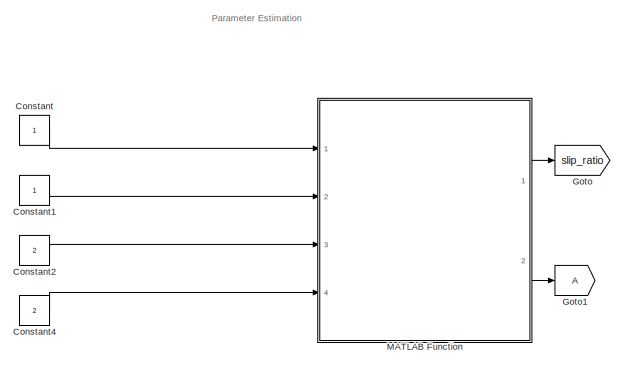
[diagram: root canvas - part 1/2, middle left region]
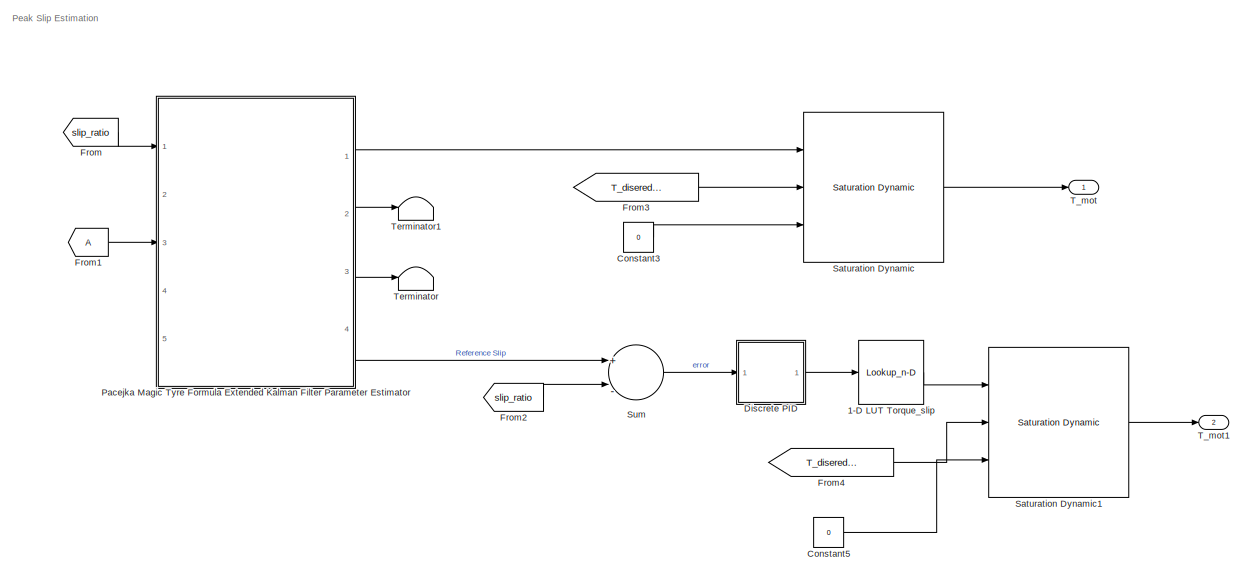
[diagram: root canvas - part 2/2, center side, full height]
MODEL slx_b171f29d78f6
KIND model
CONFIG AbsTol = auto
CONFIG FixedStep = 0.001
CONFIG MaxStep = auto
CONFIG MinStep = auto
CONFIG RelTol = 1e-3
CONFIG SampleTimeConstraint = Unconstrained
CONFIG Solver = ode3
CONFIG SolverMode = Auto
CONFIG SolverName = ode3
CONFIG StartTime = 0.0
CONFIG StopTime = inf
BLOCK [Lookup_n-D] 1-D LUT Torque_slip
  BreakpointsForDimension1 = [-5:5]
  InternalRulePriority = Speed
  NumberOfTableDimensions = 1
  Ports = [1, 1]
  RndMeth = Simplest
  Table = tanh([-5:5])
BLOCK [Constant] Constant
BLOCK [Constant] Constant1
BLOCK [Constant] Constant2
  Value = 2
BLOCK [Constant] Constant3
  Value = 0
BLOCK [Constant] Constant4
  Value = 2
BLOCK [Constant] Constant5
  Value = 0
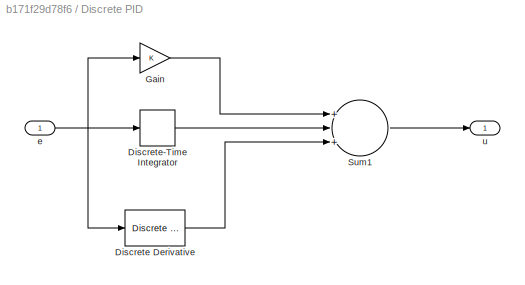
BLOCK [SubSystem] Discrete PID
  Ports = [1, 1]
  RequestExecContextInheritance = off
  Variant = off
BLOCK [Reference] Discrete PID/Discrete Derivative  REF=simulink/Discrete/Discrete Derivative
  DoSatur = off
  ICPrevScaledInput = 0.0
  InputProcessing = Inherited
  LockScale = off
  OutDataType = fixdt(1, 16)
  OutDataTypeStr = Inherit: Inherit via internal rule
  OutMax = []
  OutMin = []
  OutScaling = 2^-10
  OutputDataTypeScalingMode = Inherit via internal rule
  Ports = [1, 1]
  RndMeth = Floor
  SourceBlock = simulink/Discrete/Discrete Derivative
  SourceType = Discrete Derivative
  gainval = 1.0
BLOCK [DiscreteIntegrator] Discrete PID/Discrete-Time Integrator
  ICPrevOutput = DiscIntNeverNeededParam
  ICPrevScaledInput = DiscIntNeverNeededParam
  InitialConditionSetting = State (most efficient)
  Ports = [1, 1]
BLOCK [Gain] Discrete PID/Gain
  OutDataTypeStr = Inherit: Inherit via internal rule
  ParamDataTypeStr = Inherit: Inherit via internal rule
  SaturateOnIntegerOverflow = off
BLOCK [Sum] Discrete PID/Sum1
  InputSameDT = off
  Inputs = +|+|+
  OutDataTypeStr = Inherit: Inherit via internal rule
  Ports = [3, 1]
  SaturateOnIntegerOverflow = off
BLOCK [Inport] Discrete PID/e 
  IconDisplay = Port number
BLOCK [Outport] Discrete PID/u
  IconDisplay = Port number
BLOCK [From] From
  GotoTag = slip_ratio
BLOCK [From] From1
BLOCK [From] From2
  GotoTag = slip_ratio
BLOCK [From] From3
  GotoTag = T_disered_pedal_Nm
BLOCK [From] From4
  GotoTag = T_disered_pedal_Nm
BLOCK [Goto] Goto
  GotoTag = slip_ratio
BLOCK [Goto] Goto1
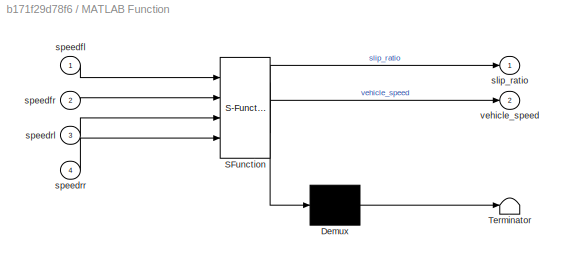
BLOCK [SubSystem] MATLAB Function
  ErrorFcn = Stateflow.Translate.translate
  PermitHierarchicalResolution = ParametersOnly
  Ports = [4, 2]
  RequestExecContextInheritance = off
  SFBlockType = MATLAB Function
  TreatAsAtomicUnit = on
  Variant = off
BLOCK [Demux] MATLAB Function/ Demux 
  Outputs = 1
  Ports = [1, 1]
BLOCK [S-Function] MATLAB Function/ SFunction 
  EnableBusSupport = on
  FunctionName = sf_sfun
  PortCounts = [4 3]
  Ports = [4, 3]
  SFunctionDeploymentMode = off
  Tag = Stateflow S-Function Launch_controlV1_a 2
BLOCK [Terminator] MATLAB Function/ Terminator 
BLOCK [Outport] MATLAB Function/slip_ratio
  IconDisplay = Port number
BLOCK [Inport] MATLAB Function/speedfl
  IconDisplay = Port number
BLOCK [Inport] MATLAB Function/speedfr
  IconDisplay = Port number
  Port = 2
BLOCK [Inport] MATLAB Function/speedrl
  IconDisplay = Port number
  Port = 3
BLOCK [Inport] MATLAB Function/speedrr
  IconDisplay = Port number
  Port = 4
BLOCK [Outport] MATLAB Function/vehicle_speed
  IconDisplay = Port number
  Port = 2
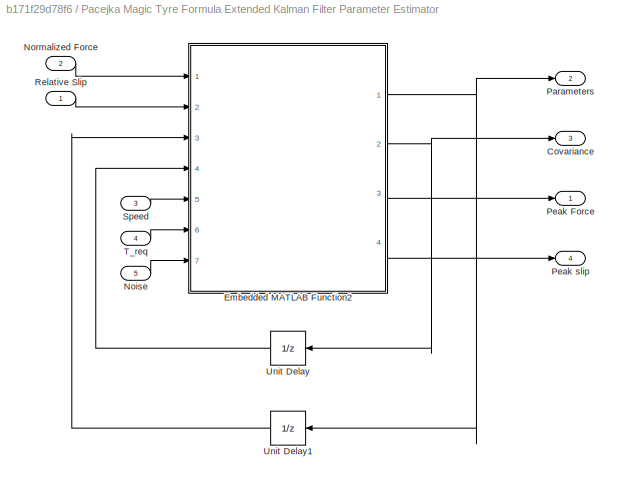
BLOCK [SubSystem] Pacejka Magic Tyre Formula Extended Kalman Filter Parameter Estimator
  Ports = [5, 4]
  RequestExecContextInheritance = off
  Variant = off
BLOCK [Outport] Pacejka Magic Tyre Formula Extended Kalman Filter Parameter Estimator/Covariance
  IconDisplay = Port number
  Port = 3
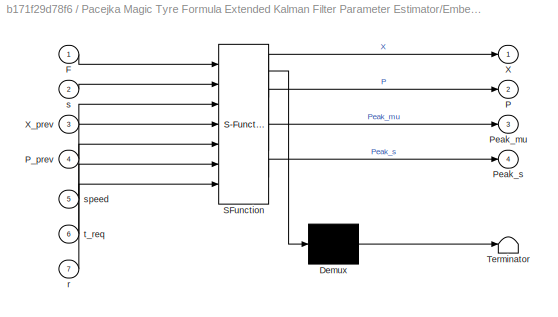
BLOCK [SubSystem] Pacejka Magic Tyre Formula Extended Kalman Filter Parameter Estimator/Embedded MATLAB Function2
  ErrorFcn = Stateflow.Translate.translate
  PermitHierarchicalResolution = ParametersOnly
  Ports = [7, 4]
  RequestExecContextInheritance = off
  SFBlockType = MATLAB Function
  TreatAsAtomicUnit = on
  Variant = off
BLOCK [Demux] Pacejka Magic Tyre Formula Extended Kalman Filter Parameter Estimator/Embedded MATLAB Function2/ Demux 
  Outputs = 1
  Ports = [1, 1]
BLOCK [S-Function] Pacejka Magic Tyre Formula Extended Kalman Filter Parameter Estimator/Embedded MATLAB Function2/ SFunction 
  EnableBusSupport = off
  FunctionName = sf_sfun
  PortCounts = [7 5]
  Ports = [7, 5]
  SFunctionDeploymentMode = off
  Tag = Stateflow S-Function Launch_controlV1_a 11
BLOCK [Terminator] Pacejka Magic Tyre Formula Extended Kalman Filter Parameter Estimator/Embedded MATLAB Function2/ Terminator 
BLOCK [Inport] Pacejka Magic Tyre Formula Extended Kalman Filter Parameter Estimator/Embedded MATLAB Function2/F
  IconDisplay = Port number
BLOCK [Outport] Pacejka Magic Tyre Formula Extended Kalman Filter Parameter Estimator/Embedded MATLAB Function2/P
  IconDisplay = Port number
  Port = 2
BLOCK [Inport] Pacejka Magic Tyre Formula Extended Kalman Filter Parameter Estimator/Embedded MATLAB Function2/P_prev
  IconDisplay = Port number
  Port = 4
BLOCK [Outport] Pacejka Magic Tyre Formula Extended Kalman Filter Parameter Estimator/Embedded MATLAB Function2/Peak_mu
  IconDisplay = Port number
  Port = 3
BLOCK [Outport] Pacejka Magic Tyre Formula Extended Kalman Filter Parameter Estimator/Embedded MATLAB Function2/Peak_s
  IconDisplay = Port number
  Port = 4
BLOCK [Outport] Pacejka Magic Tyre Formula Extended Kalman Filter Parameter Estimator/Embedded MATLAB Function2/X
  IconDisplay = Port number
BLOCK [Inport] Pacejka Magic Tyre Formula Extended Kalman Filter Parameter Estimator/Embedded MATLAB Function2/X_prev
  IconDisplay = Port number
  Port = 3
BLOCK [Inport] Pacejka Magic Tyre Formula Extended Kalman Filter Parameter Estimator/Embedded MATLAB Function2/r
  IconDisplay = Port number
  Port = 7
BLOCK [Inport] Pacejka Magic Tyre Formula Extended Kalman Filter Parameter Estimator/Embedded MATLAB Function2/s
  IconDisplay = Port number
  Port = 2
BLOCK [Inport] Pacejka Magic Tyre Formula Extended Kalman Filter Parameter Estimator/Embedded MATLAB Function2/speed
  IconDisplay = Port number
  Port = 5
BLOCK [Inport] Pacejka Magic Tyre Formula Extended Kalman Filter Parameter Estimator/Embedded MATLAB Function2/t_req
  IconDisplay = Port number
  Port = 6
BLOCK [Inport] Pacejka Magic Tyre Formula Extended Kalman Filter Parameter Estimator/Noise
  IconDisplay = Port number
  Port = 5
BLOCK [Inport] Pacejka Magic Tyre Formula Extended Kalman Filter Parameter Estimator/Normalized Force
  IconDisplay = Port number
  Port = 2
BLOCK [Outport] Pacejka Magic Tyre Formula Extended Kalman Filter Parameter Estimator/Parameters
  IconDisplay = Port number
  Port = 2
BLOCK [Outport] Pacejka Magic Tyre Formula Extended Kalman Filter Parameter Estimator/Peak Force
  IconDisplay = Port number
BLOCK [Outport] Pacejka Magic Tyre Formula Extended Kalman Filter Parameter Estimator/Peak slip
  IconDisplay = Port number
  Port = 4
BLOCK [Inport] Pacejka Magic Tyre Formula Extended Kalman Filter Parameter Estimator/Relative Slip
  IconDisplay = Port number
BLOCK [Inport] Pacejka Magic Tyre Formula Extended Kalman Filter Parameter Estimator/Speed
  IconDisplay = Port number
  Port = 3
BLOCK [Inport] Pacejka Magic Tyre Formula Extended Kalman Filter Parameter Estimator/T_req
  IconDisplay = Port number
  Port = 4
BLOCK [UnitDelay] Pacejka Magic Tyre Formula Extended Kalman Filter Parameter Estimator/Unit Delay
  InitialCondition = [1 0 0 0 0; 0 3 0 0 0; 0 0 3 0 0; 0 0 0 0.5 0; 0 0 0 0 5]
  SampleTime = Ts
BLOCK [UnitDelay] Pacejka Magic Tyre Formula Extended Kalman Filter Parameter Estimator/Unit Delay1
  InitialCondition = [15;2;2;0.9;0]
  SampleTime = Ts
BLOCK [Reference] Saturation Dynamic  REF=simulink/Discontinuities/Saturation
Dynamic
  DoSatur = off
  LockScale = off
  OutDataType = fixdt(1, 16)
  OutDataTypeStr = Inherit: Same as second input
  OutMax = []
  OutMin = []
  OutScaling = 2^-10
  OutputDataTypeScalingMode = Same as second input
  Ports = [3, 1]
  RndMeth = Floor
  SourceBlock = simulink/Discontinuities/Saturation\nDynamic
  SourceType = Saturation Dynamic
BLOCK [Reference] Saturation Dynamic1  REF=simulink/Discontinuities/Saturation
Dynamic
  DoSatur = off
  LockScale = off
  OutDataType = fixdt(1, 16)
  OutDataTypeStr = Inherit: Same as second input
  OutMax = []
  OutMin = []
  OutScaling = 2^-10
  OutputDataTypeScalingMode = Same as second input
  Ports = [3, 1]
  RndMeth = Floor
  SourceBlock = simulink/Discontinuities/Saturation\nDynamic
  SourceType = Saturation Dynamic
BLOCK [Sum] Sum
  InputSameDT = off
  Inputs = +|-
  OutDataTypeStr = Inherit: Inherit via internal rule
  Ports = [2, 1]
  SaturateOnIntegerOverflow = off
BLOCK [Outport] T_mot
  IconDisplay = Port number
BLOCK [Outport] T_mot1
  IconDisplay = Port number
  Port = 2
BLOCK [Terminator] Terminator
BLOCK [Terminator] Terminator1
ANNOTATION (root): Parameter Estimation
ANNOTATION (root): Peak Slip Estimation
LINE 1-D LUT Torque_slip:1 -> Saturation Dynamic1:1
LINE Constant1:1 -> MATLAB Function:2
LINE Constant2:1 -> MATLAB Function:3
LINE Constant3:1 -> Saturation Dynamic:3
LINE Constant4:1 -> MATLAB Function:4
LINE Constant5:1 -> Saturation Dynamic1:3
LINE Constant:1 -> MATLAB Function:1
LINE Discrete PID/Discrete Derivative:1 -> Discrete PID/Sum1:3
LINE Discrete PID/Discrete-Time Integrator:1 -> Discrete PID/Sum1:2
LINE Discrete PID/Gain:1 -> Discrete PID/Sum1:1
LINE Discrete PID/Sum1:1 -> Discrete PID/u:1
NET Discrete PID/e :1 -> Discrete PID/Discrete Derivative:1, Discrete PID/Discrete-Time Integrator:1, Discrete PID/Gain:1
LINE Discrete PID:1 -> 1-D LUT Torque_slip:1
LINE From1:1 -> Pacejka Magic Tyre Formula Extended Kalman Filter Parameter Estimator:3
LINE From2:1 -> Sum:2
LINE From3:1 -> Saturation Dynamic:2
LINE From4:1 -> Saturation Dynamic1:2
LINE From:1 -> Pacejka Magic Tyre Formula Extended Kalman Filter Parameter Estimator:1
LINE MATLAB Function:1 -> Goto:1
LINE MATLAB Function:2 -> Goto1:1
NET Pacejka Magic Tyre Formula Extended Kalman Filter Parameter Estimator/Embedded MATLAB Function2:1 -> Pacejka Magic Tyre Formula Extended Kalman Filter Parameter Estimator/Parameters:1, Pacejka Magic Tyre Formula Extended Kalman Filter Parameter Estimator/Unit Delay1:1
NET Pacejka Magic Tyre Formula Extended Kalman Filter Parameter Estimator/Embedded MATLAB Function2:2 -> Pacejka Magic Tyre Formula Extended Kalman Filter Parameter Estimator/Covariance:1, Pacejka Magic Tyre Formula Extended Kalman Filter Parameter Estimator/Unit Delay:1
LINE Pacejka Magic Tyre Formula Extended Kalman Filter Parameter Estimator/Embedded MATLAB Function2:3 -> Pacejka Magic Tyre Formula Extended Kalman Filter Parameter Estimator/Peak Force:1
LINE Pacejka Magic Tyre Formula Extended Kalman Filter Parameter Estimator/Embedded MATLAB Function2:4 -> Pacejka Magic Tyre Formula Extended Kalman Filter Parameter Estimator/Peak slip:1
LINE Pacejka Magic Tyre Formula Extended Kalman Filter Parameter Estimator/Noise:1 -> Pacejka Magic Tyre Formula Extended Kalman Filter Parameter Estimator/Embedded MATLAB Function2:7
LINE Pacejka Magic Tyre Formula Extended Kalman Filter Parameter Estimator/Normalized Force:1 -> Pacejka Magic Tyre Formula Extended Kalman Filter Parameter Estimator/Embedded MATLAB Function2:1
LINE Pacejka Magic Tyre Formula Extended Kalman Filter Parameter Estimator/Relative Slip:1 -> Pacejka Magic Tyre Formula Extended Kalman Filter Parameter Estimator/Embedded MATLAB Function2:2
LINE Pacejka Magic Tyre Formula Extended Kalman Filter Parameter Estimator/Speed:1 -> Pacejka Magic Tyre Formula Extended Kalman Filter Parameter Estimator/Embedded MATLAB Function2:5
LINE Pacejka Magic Tyre Formula Extended Kalman Filter Parameter Estimator/T_req:1 -> Pacejka Magic Tyre Formula Extended Kalman Filter Parameter Estimator/Embedded MATLAB Function2:6
LINE Pacejka Magic Tyre Formula Extended Kalman Filter Parameter Estimator/Unit Delay1:1 -> Pacejka Magic Tyre Formula Extended Kalman Filter Parameter Estimator/Embedded MATLAB Function2:3
LINE Pacejka Magic Tyre Formula Extended Kalman Filter Parameter Estimator/Unit Delay:1 -> Pacejka Magic Tyre Formula Extended Kalman Filter Parameter Estimator/Embedded MATLAB Function2:4
LINE Pacejka Magic Tyre Formula Extended Kalman Filter Parameter Estimator:1 -> Saturation Dynamic:1
LINE Pacejka Magic Tyre Formula Extended Kalman Filter Parameter Estimator:2 -> Terminator1:1
LINE Pacejka Magic Tyre Formula Extended Kalman Filter Parameter Estimator:3 -> Terminator:1
LINE Pacejka Magic Tyre Formula Extended Kalman Filter Parameter Estimator:4 -> Sum:1
LINE Saturation Dynamic1:1 -> T_mot1:1
LINE Saturation Dynamic:1 -> T_mot:1
LINE Sum:1 -> Discrete PID:1
note: NET lines group one-source signal fan-out (src -> all destinations, sorted); 1:1 wires keep LINE
CHART MATLAB Function states=1 transitions=1
  STATE_LABEL 'eML_blk_kernel()'
  STATE_LABEL 'SCRIPT:\nfunction [slip_ratio, vehicle_speed]=Launch_slip_calc(speedfl,speedfr,speedrl,speedrr)\n%Calculates the wheel slip ratio\nrwheel=0.254; %m\n\nRotspeed_front=(speedfl+speedfr)/2;\nRotspeed_rear = max(speedrl,speedrr);\n\nvehicle_speed=Rotspeed_front*rwheel;\n\nslip_ratio=(1-vehicle_speed/(rwheel*Rotspeed_rear));\n\nif slip_ratio<0\n    slip_ratio=0;\nend\n\nend\n'
CHART Pacejka Magic Tyre Formula
Extended Kalman Filter
Parameter Estimator/Embedded
MATLAB Function2 states=1 transitions=1
  STATE_LABEL 'eML_blk_kernel()'
  STATE_LABEL 'SCRIPT:\nfunction [X,P,Peak_mu,Peak_s]= Magic_Formula(F,s,X_prev,P_prev,speed,t_req,r)\n    \n% Initialization\n\nX = X_prev;\nP = P_prev;\n\n% Kalman Filter Algorithm (Pacejka Magic Formula)\n% State X consists of B, C, D, E, Sv, Sh (in this order)\n\nB = X(1,1);\nC = X(2,1);\nD = X(3,1);\nE = X(4,1);\nSh = X(5,1);\n\n% Noise\n%r = [0.01 0; 0 0.1];\n\nif (s >= 0.02 && s <= 0.10 && F >= 0.5 && speed >= 10 && t_req >=...<+813ch>'
